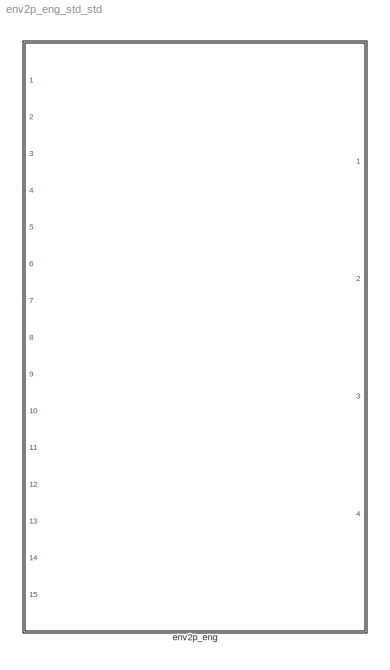
MODEL env2p_eng_std_std
KIND library
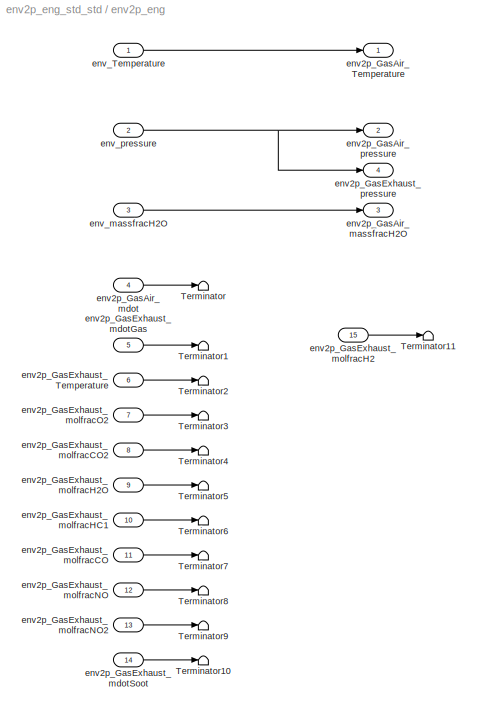
BLOCK [SubSystem] env2p_eng
  Ports = [15, 4]
  RequestExecContextInheritance = off
  SID = 1
  Variant = off
BLOCK [Terminator] env2p_eng/Terminator
  SID = 16
BLOCK [Terminator] env2p_eng/Terminator1
  SID = 17
BLOCK [Terminator] env2p_eng/Terminator10
  SID = 18
BLOCK [Terminator] env2p_eng/Terminator11
  SID = 32
BLOCK [Terminator] env2p_eng/Terminator2
  SID = 19
BLOCK [Terminator] env2p_eng/Terminator3
  SID = 20
BLOCK [Terminator] env2p_eng/Terminator4
  SID = 21
BLOCK [Terminator] env2p_eng/Terminator5
  SID = 22
BLOCK [Terminator] env2p_eng/Terminator6
  SID = 23
BLOCK [Terminator] env2p_eng/Terminator7
  SID = 24
BLOCK [Terminator] env2p_eng/Terminator8
  SID = 25
BLOCK [Terminator] env2p_eng/Terminator9
  SID = 26
BLOCK [Outport] env2p_eng/env2p_GasAir_Temperature
  IconDisplay = Port number
  SID = 27
BLOCK [Outport] env2p_eng/env2p_GasAir_massfracH2O
  IconDisplay = Port number
  Port = 3
  SID = 29
BLOCK [Inport] env2p_eng/env2p_GasAir_mdot
  IconDisplay = Port number
  Port = 4
  SID = 5
BLOCK [Outport] env2p_eng/env2p_GasAir_pressure
  IconDisplay = Port number
  Port = 2
  SID = 28
BLOCK [Inport] env2p_eng/env2p_GasExhaust_Temperature
  IconDisplay = Port number
  Port = 6
  SID = 7
BLOCK [Inport] env2p_eng/env2p_GasExhaust_mdotGas
  IconDisplay = Port number
  Port = 5
  SID = 6
BLOCK [Inport] env2p_eng/env2p_GasExhaust_mdotSoot
  IconDisplay = Port number
  Port = 14
  SID = 15
BLOCK [Inport] env2p_eng/env2p_GasExhaust_molfracCO
  IconDisplay = Port number
  Port = 11
  SID = 12
BLOCK [Inport] env2p_eng/env2p_GasExhaust_molfracCO2
  IconDisplay = Port number
  Port = 8
  SID = 9
BLOCK [Inport] env2p_eng/env2p_GasExhaust_molfracH2
  IconDisplay = Port number
  Port = 15
  SID = 31
BLOCK [Inport] env2p_eng/env2p_GasExhaust_molfracH2O
  IconDisplay = Port number
  Port = 9
  SID = 10
BLOCK [Inport] env2p_eng/env2p_GasExhaust_molfracHC1
  IconDisplay = Port number
  Port = 10
  SID = 11
BLOCK [Inport] env2p_eng/env2p_GasExhaust_molfracNO
  IconDisplay = Port number
  Port = 12
  SID = 13
BLOCK [Inport] env2p_eng/env2p_GasExhaust_molfracNO2
  IconDisplay = Port number
  Port = 13
  SID = 14
BLOCK [Inport] env2p_eng/env2p_GasExhaust_molfracO2
  IconDisplay = Port number
  Port = 7
  SID = 8
BLOCK [Outport] env2p_eng/env2p_GasExhaust_pressure
  IconDisplay = Port number
  Port = 4
  SID = 30
BLOCK [Inport] env2p_eng/env_Temperature
  IconDisplay = Port number
  SID = 2
BLOCK [Inport] env2p_eng/env_massfracH2O
  IconDisplay = Port number
  Port = 3
  SID = 4
BLOCK [Inport] env2p_eng/env_pressure
  IconDisplay = Port number
  Port = 2
  SID = 3
LINE env2p_eng/env2p_GasAir_mdot:1 -> env2p_eng/Terminator:1
LINE env2p_eng/env2p_GasExhaust_Temperature:1 -> env2p_eng/Terminator2:1
LINE env2p_eng/env2p_GasExhaust_mdotGas:1 -> env2p_eng/Terminator1:1
LINE env2p_eng/env2p_GasExhaust_mdotSoot:1 -> env2p_eng/Terminator10:1
LINE env2p_eng/env2p_GasExhaust_molfracCO2:1 -> env2p_eng/Terminator4:1
LINE env2p_eng/env2p_GasExhaust_molfracCO:1 -> env2p_eng/Terminator7:1
LINE env2p_eng/env2p_GasExhaust_molfracH2:1 -> env2p_eng/Terminator11:1
LINE env2p_eng/env2p_GasExhaust_molfracH2O:1 -> env2p_eng/Terminator5:1
LINE env2p_eng/env2p_GasExhaust_molfracHC1:1 -> env2p_eng/Terminator6:1
LINE env2p_eng/env2p_GasExhaust_molfracNO2:1 -> env2p_eng/Terminator9:1
LINE env2p_eng/env2p_GasExhaust_molfracNO:1 -> env2p_eng/Terminator8:1
LINE env2p_eng/env2p_GasExhaust_molfracO2:1 -> env2p_eng/Terminator3:1
LINE env2p_eng/env_Temperature:1 -> env2p_eng/env2p_GasAir_Temperature:1
LINE env2p_eng/env_massfracH2O:1 -> env2p_eng/env2p_GasAir_massfracH2O:1
NET env2p_eng/env_pressure:1 -> env2p_eng/env2p_GasAir_pressure:1, env2p_eng/env2p_GasExhaust_pressure:1
note: NET lines group one-source signal fan-out (src -> all destinations, sorted); 1:1 wires keep LINE
